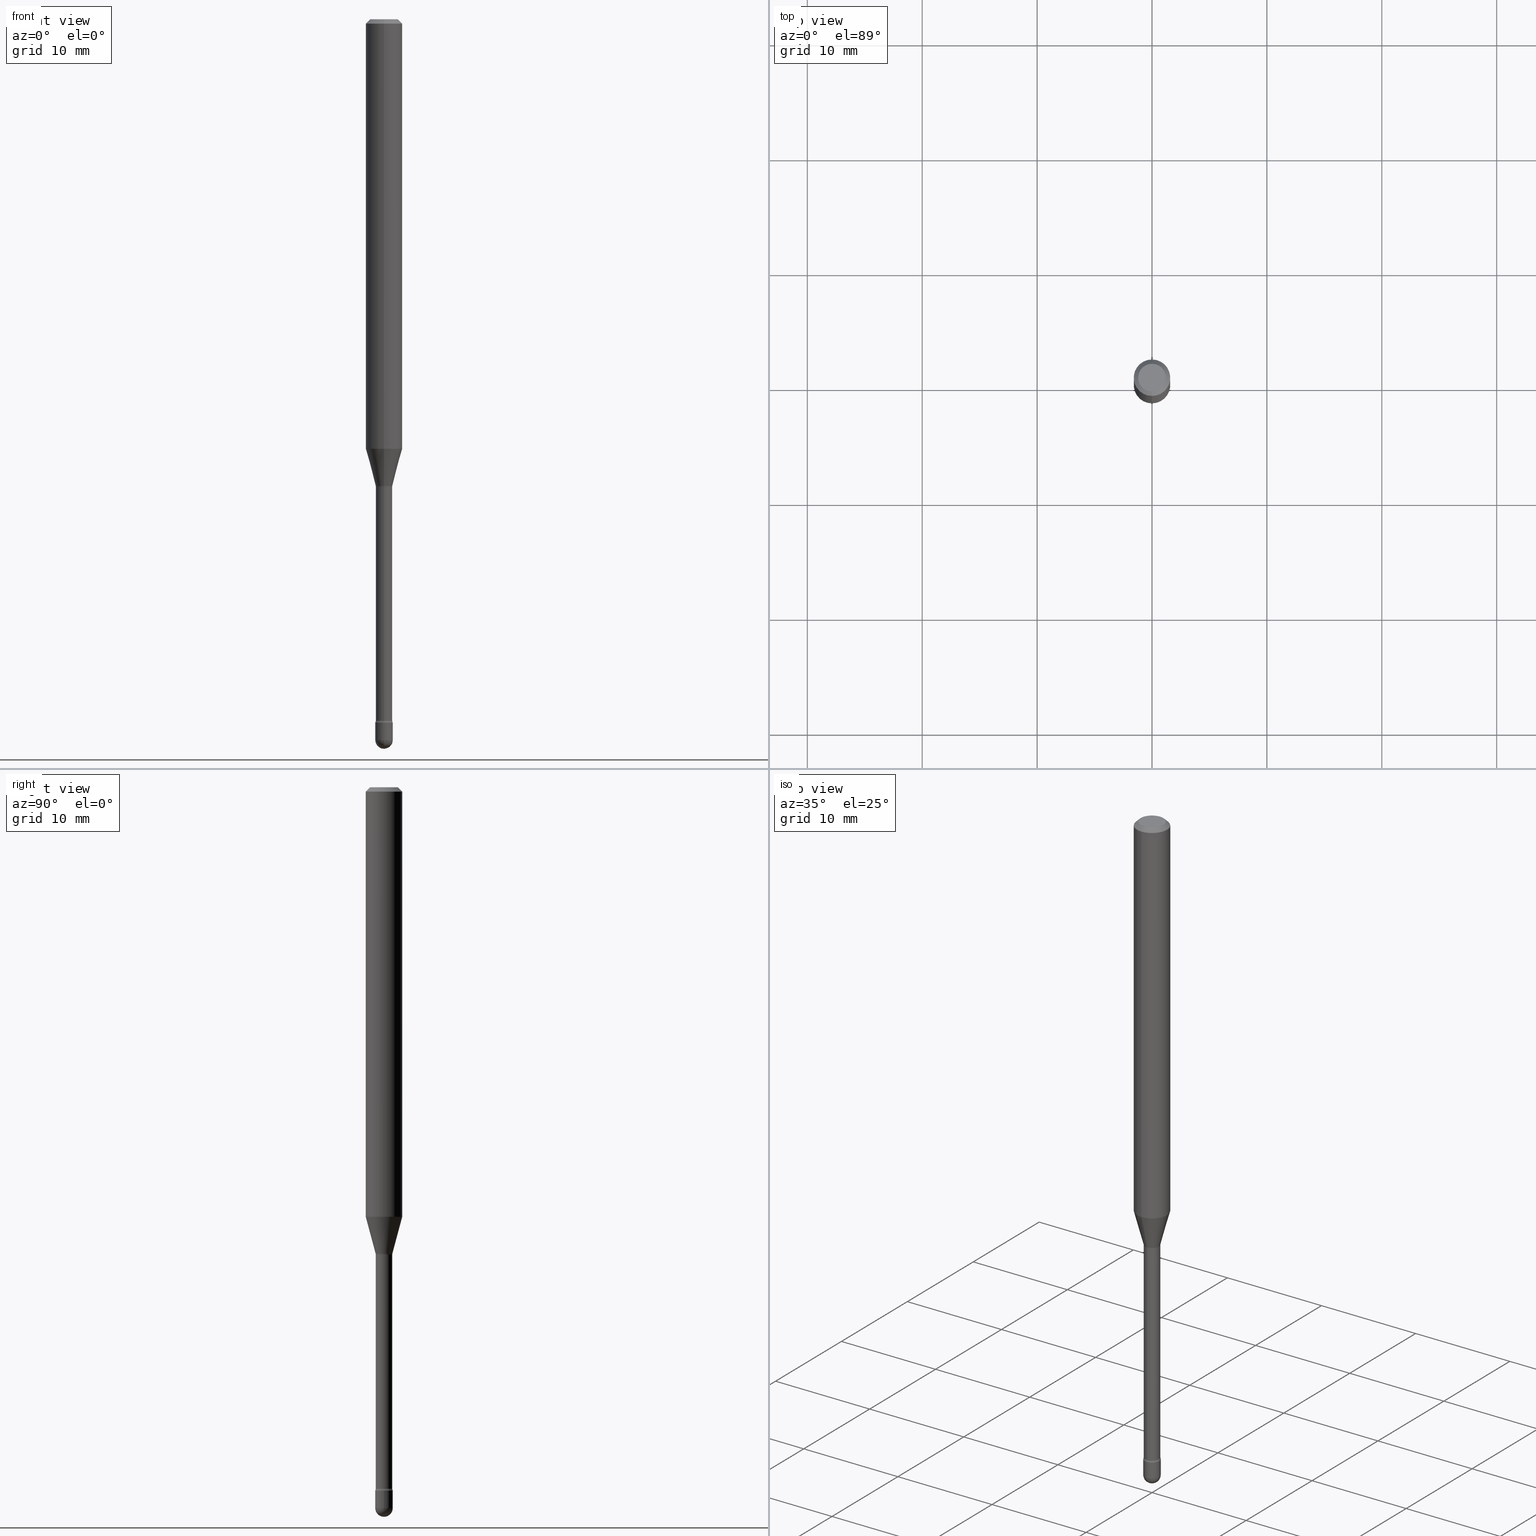
[diagram: canonical four-view strip — front | top / right | iso, engineering-drawing reading convention]
A machine part, canonical four-view strip (front | top / right | iso — engineering-drawing reading convention). The complete STEP part file that produces these views, byte-faithful:
ISO-10303-21;
HEADER;
FILE_DESCRIPTION (( 'STEP AP203' ),
    '1' );
FILE_NAME ('09491.STEP',
    '2024-04-09T23:48:32',
    ( '' ),
    ( '' ),
    'SwSTEP 2.0',
    'SolidWorks 2023',
    '' );
FILE_SCHEMA (( 'CONFIG_CONTROL_DESIGN' ));
ENDSEC;

DATA;
#1 = EDGE_CURVE ( 'NONE', #211, #287, #257, .T. ) ;
#2 = CARTESIAN_POINT ( 'NONE',  ( 6.040307951277287977E-29, -8.623958906942569995E-15, -2.470000000000000195 ) ) ;
#3 = DIRECTION ( 'NONE',  ( -6.982962677686265922E-15, -1.000000000000000000, 3.491535663592855480E-15 ) ) ;
#4 = CARTESIAN_POINT ( 'NONE',  ( 5.893488400110552381E-29, -8.414600949258782082E-15, -2.410000000000000142 ) ) ;
#5 = CIRCLE ( 'NONE', #146, 0.01500000000000001853 ) ;
#6 = AXIS2_PLACEMENT_3D ( 'NONE', #517, #473, #518 ) ;
#7 = APPROVAL_PERSON_ORGANIZATION ( #334, #125, #280 ) ;
#8 = LINE ( 'NONE', #358, #67 ) ;
#9 = EDGE_CURVE ( 'NONE', #359, #211, #560, .T. ) ;
#10 = CARTESIAN_POINT ( 'NONE',  ( 3.668146307122770334E-31, -5.237303495389312310E-17, -0.01500000000000008271 ) ) ;
#11 = DIRECTION ( 'NONE',  ( 6.982962677686265922E-15, 1.000000000000000000, 0.000000000000000000 ) ) ;
#12 = CARTESIAN_POINT ( 'NONE',  ( -3.016639876760075163E-16, -0.04320000000000558810, -1.601974787463810834 ) ) ;
#13 = CARTESIAN_POINT ( 'NONE',  ( 5.893579822906179826E-29, -8.414470026611981678E-15, -2.410000000000000142 ) ) ;
#14 = CARTESIAN_POINT ( 'NONE',  ( 6.040307951277287977E-29, -8.623958906942569995E-15, -2.470000000000000195 ) ) ;
#15 = DIRECTION ( 'NONE',  ( 6.982962677686265922E-15, 1.000000000000000000, 0.000000000000000000 ) ) ;
#16 = LINE ( 'NONE', #197, #216 ) ;
#17 = VECTOR ( 'NONE', #493, 39.37007874015748143 ) ;
#18 = AXIS2_PLACEMENT_3D ( 'NONE', #93, #351, #527 ) ;
#19 = COORDINATED_UNIVERSAL_TIME_OFFSET ( 5, 0, .BEHIND. ) ;
#20 = DIRECTION ( 'NONE',  ( -6.982962677686266711E-15, -1.000000000000000000, 0.000000000000000000 ) ) ;
#21 = ADVANCED_FACE ( 'NONE', ( #227 ), #423, .T. ) ;
#22 = PERSON_AND_ORGANIZATION ( #549, #410 ) ;
#23 = CARTESIAN_POINT ( 'NONE',  ( 0.03000000000000000583, -2.094888803305880457E-16, 1.462853032738781053E-30 ) ) ;
#24 = CARTESIAN_POINT ( 'NONE',  ( -4.364351673553916201E-16, -0.06250000000000000000, 6.962943778657995554E-16 ) ) ;
#25 = DIRECTION ( 'NONE',  ( -6.982962677686266711E-15, -1.000000000000000000, 3.491535663592855480E-15 ) ) ;
#26 = APPLICATION_PROTOCOL_DEFINITION ( 'international standard', 'config_control_design', 1994, #522 ) ;
#27 = ORIENTED_EDGE ( 'NONE', *, *, #33, .T. ) ;
#28 = DIRECTION ( 'NONE',  ( 1.000000000000000000, -6.982962677686268288E-15, 0.000000000000000000 ) ) ;
#29 = DIRECTION ( 'NONE',  ( -2.445468806185136597E-29, 3.491481338843145583E-15, 1.000000000000000000 ) ) ;
#30 = CALENDAR_DATE ( 2024, 9, 4 ) ;
#31 = AXIS2_PLACEMENT_3D ( 'NONE', #362, #272, #497 ) ;
#32 = CC_DESIGN_APPROVAL ( #125, ( #369 ) ) ;
#33 = EDGE_CURVE ( 'NONE', #73, #135, #16, .T. ) ;
#34 = CARTESIAN_POINT ( 'NONE',  ( 4.440892098500987066E-16, 0.06249999999999993755, -0.01500000000000030129 ) ) ;
#35 = DIRECTION ( 'NONE',  ( 6.982962677686265922E-15, 1.000000000000000000, 0.000000000000000000 ) ) ;
#36 = ORIENTED_EDGE ( 'NONE', *, *, #379, .F. ) ;
#37 = VERTEX_POINT ( 'NONE', #69 ) ;
#38 = ORIENTED_EDGE ( 'NONE', *, *, #306, .T. ) ;
#39 = DIRECTION ( 'NONE',  ( -2.445430871415166747E-29, 3.491535663592855480E-15, 1.000000000000000000 ) ) ;
#40 = VERTEX_POINT ( 'NONE', #313 ) ;
#41 = CIRCLE ( 'NONE', #439, 0.06250000000000000000 ) ;
#42 = ORIENTED_EDGE ( 'NONE', *, *, #349, .T. ) ;
#43 = LINE ( 'NONE', #397, #479 ) ;
#44 = CARTESIAN_POINT ( 'NONE',  ( 3.917518600492754438E-29, -5.593352102606481311E-15, -1.601974787463811278 ) ) ;
#45 = EDGE_CURVE ( 'NONE', #265, #519, #538, .T. ) ;
#46 = AXIS2_PLACEMENT_3D ( 'NONE', #177, #233, #356 ) ;
#47 = DIRECTION ( 'NONE',  ( 1.000000000000000000, -6.982962677686266711E-15, 4.876176775795935793E-29 ) ) ;
#48 = CARTESIAN_POINT ( 'NONE',  ( 3.908024739247695571E-29, -5.579796963710593659E-15, -1.598092501787273134 ) ) ;
#49 = ORIENTED_EDGE ( 'NONE', *, *, #274, .F. ) ;
#50 = DIRECTION ( 'NONE',  ( -2.445468806185136597E-29, 3.491481338843145583E-15, 1.000000000000000000 ) ) ;
#51 = DIRECTION ( 'NONE',  ( -2.445430871415166747E-29, 3.491535663592855480E-15, 1.000000000000000000 ) ) ;
#52 = DIRECTION ( 'NONE',  ( -6.982962677686266711E-15, -1.000000000000000000, 3.491535663592855480E-15 ) ) ;
#53 = MANIFOLD_SOLID_BREP ( 'Body-Move/Copy2[2]', #512 ) ;
#54 = DIRECTION ( 'NONE',  ( -6.982962677686265922E-15, -1.000000000000000000, 3.491535663592855480E-15 ) ) ;
#55 = CIRCLE ( 'NONE', #302, 0.02820000000000016938 ) ;
#56 = FACE_OUTER_BOUND ( 'NONE', #394, .T. ) ;
#57 = MANIFOLD_SOLID_BREP ( 'Body-Move/Copy2[1]', #66 ) ;
#58 = DIRECTION ( 'NONE',  ( 6.982962677686265922E-15, 1.000000000000000000, -3.483106191921935554E-15 ) ) ;
#59 = ADVANCED_FACE ( 'NONE', ( #228 ), #505, .T. ) ;
#60 = CARTESIAN_POINT ( 'NONE',  ( 6.040307951277287977E-29, -8.623958906942569995E-15, -2.470000000000000195 ) ) ;
#61 = CARTESIAN_POINT ( 'NONE',  ( 4.440892098500983121E-16, 0.06249999999999484440, -1.471990657300388250 ) ) ;
#62 = DIRECTION ( 'NONE',  ( -2.445430871415166747E-29, 3.491535663592855480E-15, 1.000000000000000000 ) ) ;
#63 = COORDINATED_UNIVERSAL_TIME_OFFSET ( 5, 0, .BEHIND. ) ;
#64 = DIRECTION ( 'NONE',  ( -2.445468806185136597E-29, 3.491481338843145583E-15, 1.000000000000000000 ) ) ;
#65 = ADVANCED_FACE ( 'NONE', ( #498 ), #462, .T. ) ;
#66 = CLOSED_SHELL ( 'NONE', ( #375, #467, #224, #65, #409 ) ) ;
#67 = VECTOR ( 'NONE', #455, 39.37007874015748143 ) ;
#68 = DATE_AND_TIME ( #370, #480 ) ;
#69 = CARTESIAN_POINT ( 'NONE',  ( -4.364351673553558748E-16, -0.06250000000000517641, -1.471990657300387584 ) ) ;
#70 = CARTESIAN_POINT ( 'NONE',  ( 0.000000000000000000, 0.000000000000000000, 0.000000000000000000 ) ) ;
#71 = ORIENTED_EDGE ( 'NONE', *, *, #83, .T. ) ;
#72 = EDGE_CURVE ( 'NONE', #509, #359, #268, .T. ) ;
#73 = VERTEX_POINT ( 'NONE', #245 ) ;
#74 = DIRECTION ( 'NONE',  ( 1.000000000000000000, -6.982962677686265922E-15, 4.883557194083112340E-29 ) ) ;
#75 = ORIENTED_EDGE ( 'NONE', *, *, #134, .T. ) ;
#76 = AXIS2_PLACEMENT_3D ( 'NONE', #48, #275, #98 ) ;
#77 = PRODUCT ( '09491', '09491', '', ( #198 ) ) ;
#78 = ORIENTED_EDGE ( 'NONE', *, *, #440, .F. ) ;
#79 = CARTESIAN_POINT ( 'NONE',  ( -1.969195475106951401E-16, -0.02820000000000855503, -2.402875394747777893 ) ) ;
#80 = EDGE_LOOP ( 'NONE', ( #386, #295, #382, #36 ) ) ;
#81 = ORIENTED_EDGE ( 'NONE', *, *, #481, .T. ) ;
#82 = ORIENTED_EDGE ( 'NONE', *, *, #400, .T. ) ;
#83 = EDGE_CURVE ( 'NONE', #37, #124, #422, .T. ) ;
#84 = VERTEX_POINT ( 'NONE', #414 ) ;
#85 = CIRCLE ( 'NONE', #367, 0.01500000000000001853 ) ;
#86 = PLANE ( 'NONE',  #294 ) ;
#87 = CIRCLE ( 'NONE', #236, 0.02999999999999997807 ) ;
#88 = ADVANCED_FACE ( 'NONE', ( #188 ), #535, .F. ) ;
#89 = DIRECTION ( 'NONE',  ( 1.000000000000000000, -6.982962677686265922E-15, 4.876176775795935793E-29 ) ) ;
#90 = ORIENTED_EDGE ( 'NONE', *, *, #481, .F. ) ;
#91 = APPROVAL_DATE_TIME ( #305, #450 ) ;
#92 = ADVANCED_FACE ( 'NONE', ( #372 ), #360, .T. ) ;
#93 = CARTESIAN_POINT ( 'NONE',  ( 6.040307951277287977E-29, -8.623958906942569995E-15, -2.470000000000000195 ) ) ;
#94 = DIRECTION ( 'NONE',  ( -2.445430871415166747E-29, 3.491535663592855480E-15, 1.000000000000000000 ) ) ;
#95 = CIRCLE ( 'NONE', #539, 0.02999999999999999889 ) ;
#96 = AXIS2_PLACEMENT_3D ( 'NONE', #529, #104, #324 ) ;
#97 = DIRECTION ( 'NONE',  ( -2.445430871415166747E-29, 3.491535663592855480E-15, 1.000000000000000000 ) ) ;
#98 = DIRECTION ( 'NONE',  ( -6.982962677686265133E-15, -1.000000000000000000, 0.000000000000000000 ) ) ;
#99 = DIRECTION ( 'NONE',  ( -6.982962677686266711E-15, -1.000000000000000000, 3.491535663592855480E-15 ) ) ;
#100 = DIRECTION ( 'NONE',  ( -6.982962677686265922E-15, -1.000000000000000000, 0.000000000000000000 ) ) ;
#101 = DIRECTION ( 'NONE',  ( -2.445430871415166747E-29, 3.491535663592855480E-15, 1.000000000000000000 ) ) ;
#102 = AXIS2_PLACEMENT_3D ( 'NONE', #10, #186, #191 ) ;
#103 = CIRCLE ( 'NONE', #207, 0.04749999999999999362 ) ;
#104 = DIRECTION ( 'NONE',  ( -2.445430871415166747E-29, 3.491535663592855480E-15, 1.000000000000000000 ) ) ;
#105 = CC_DESIGN_PERSON_AND_ORGANIZATION_ASSIGNMENT ( #458, #201, ( #77 ) ) ;
#106 = CARTESIAN_POINT ( 'NONE',  ( 3.599651395797071591E-29, -5.139507876439793578E-15, -1.471990657300388028 ) ) ;
#107 = DATE_TIME_ROLE ( 'classification_date' ) ;
#108 = CARTESIAN_POINT ( 'NONE',  ( 3.668146307122770334E-31, -5.237303495389312310E-17, -0.01500000000000008271 ) ) ;
#109 = AXIS2_PLACEMENT_3D ( 'NONE', #532, #101, #491 ) ;
#110 = AXIS2_PLACEMENT_3D ( 'NONE', #4, #456, #187 ) ;
#111 = CARTESIAN_POINT ( 'NONE',  ( 5.876156823005488124E-29, -8.389594600327224115E-15, -2.402875394747777893 ) ) ;
#112 = ORIENTED_EDGE ( 'NONE', *, *, #113, .T. ) ;
#113 = EDGE_CURVE ( 'NONE', #129, #84, #565, .T. ) ;
#114 = ORIENTED_EDGE ( 'NONE', *, *, #306, .F. ) ;
#115 = APPROVAL_DATE_TIME ( #508, #395 ) ;
#116 = ORIENTED_EDGE ( 'NONE', *, *, #33, .F. ) ;
#117 = ORIENTED_EDGE ( 'NONE', *, *, #531, .F. ) ;
#118 = CARTESIAN_POINT ( 'NONE',  ( 5.876065670480121665E-29, -8.389725135931628205E-15, -2.402875394747777893 ) ) ;
#119 = ORIENTED_EDGE ( 'NONE', *, *, #219, .T. ) ;
#120 = CIRCLE ( 'NONE', #469, 0.02819999999999999590 ) ;
#121 = ORIENTED_EDGE ( 'NONE', *, *, #400, .F. ) ;
#122 = CIRCLE ( 'NONE', #226, 0.02999999999999999889 ) ;
#123 = ORIENTED_EDGE ( 'NONE', *, *, #416, .T. ) ;
#124 = VERTEX_POINT ( 'NONE', #242 ) ;
#125 = APPROVAL ( #377, 'UNSPECIFIED' ) ;
#126 = DIRECTION ( 'NONE',  ( 4.937700262164548042E-15, 0.7071067811865451302, -0.7071067811865499042 ) ) ;
#127 = ORIENTED_EDGE ( 'NONE', *, *, #290, .T. ) ;
#128 = CARTESIAN_POINT ( 'NONE',  ( 3.668146307122770334E-31, -5.237303495389312310E-17, -0.01500000000000008271 ) ) ;
#129 = VERTEX_POINT ( 'NONE', #315 ) ;
#130 = AXIS2_PLACEMENT_3D ( 'NONE', #452, #361, #100 ) ;
#131 = AXIS2_PLACEMENT_3D ( 'NONE', #405, #403, #445 ) ;
#132 = LOCAL_TIME ( 19, 48, 32.00000000000000000, #336 ) ;
#133 = EDGE_LOOP ( 'NONE', ( #516, #266, #433, #563, #483 ) ) ;
#134 = EDGE_CURVE ( 'NONE', #359, #135, #5, .T. ) ;
#135 = VERTEX_POINT ( 'NONE', #502 ) ;
#136 = FACE_OUTER_BOUND ( 'NONE', #133, .T. ) ;
#137 = AXIS2_PLACEMENT_3D ( 'NONE', #463, #29, #520 ) ;
#138 = VERTEX_POINT ( 'NONE', #282 ) ;
#139 = AXIS2_PLACEMENT_3D ( 'NONE', #60, #140, #240 ) ;
#140 = DIRECTION ( 'NONE',  ( -1.000000000000000000, 7.105427357601001070E-15, -4.926315508542082329E-29 ) ) ;
#141 = CARTESIAN_POINT ( 'NONE',  ( 2.094888803306483442E-16, 0.02999999999999137038, -2.470000000000000195 ) ) ;
#142 = DIRECTION ( 'NONE',  ( -2.445430871415166747E-29, 3.491535663592855480E-15, 1.000000000000000000 ) ) ;
#143 = CARTESIAN_POINT ( 'NONE',  ( 0.000000000000000000, 0.000000000000000000, 0.000000000000000000 ) ) ;
#144 = DIRECTION ( 'NONE',  ( -6.982962677686265922E-15, -1.000000000000000000, 3.483106191921935554E-15 ) ) ;
#145 = DIRECTION ( 'NONE',  ( 2.445430871415166747E-29, -3.491535663592855480E-15, -1.000000000000000000 ) ) ;
#146 = AXIS2_PLACEMENT_3D ( 'NONE', #195, #541, #151 ) ;
#147 = AXIS2_PLACEMENT_3D ( 'NONE', #178, #237, #52 ) ;
#148 = SECURITY_CLASSIFICATION ( '', '', #503 ) ;
#149 = EDGE_CURVE ( 'NONE', #135, #293, #120, .T. ) ;
#150 = CARTESIAN_POINT ( 'NONE',  ( 3.599651395797071591E-29, -5.139507876439793578E-15, -1.471990657300388028 ) ) ;
#151 = DIRECTION ( 'NONE',  ( 7.105427357601001859E-15, 1.000000000000000000, 0.000000000000000000 ) ) ;
#152 = DIRECTION ( 'NONE',  ( 7.105427357601001859E-15, 1.000000000000000000, 0.000000000000000000 ) ) ;
#153 = PERSON_AND_ORGANIZATION_ROLE ( 'design_supplier' ) ;
#154 = DIRECTION ( 'NONE',  ( -2.445468806185136597E-29, 3.491481338843145583E-15, 1.000000000000000000 ) ) ;
#155 =( NAMED_UNIT ( * ) PLANE_ANGLE_UNIT ( ) SI_UNIT ( $, .RADIAN. ) );
#156 = ADVANCED_FACE ( 'NONE', ( #558 ), #443, .F. ) ;
#157 = AXIS2_PLACEMENT_3D ( 'NONE', #128, #142, #144 ) ;
#158 = LOCAL_TIME ( 19, 48, 32.00000000000000000, #63 ) ;
#159 = DATE_AND_TIME ( #430, #380 ) ;
#160 = ORIENTED_EDGE ( 'NONE', *, *, #335, .F. ) ;
#161 = APPROVAL_STATUS ( 'not_yet_approved' ) ;
#162 = EDGE_LOOP ( 'NONE', ( #330, #112 ) ) ;
#163 = FACE_OUTER_BOUND ( 'NONE', #465, .T. ) ;
#164 = ORIENTED_EDGE ( 'NONE', *, *, #113, .F. ) ;
#165 = PERSON_AND_ORGANIZATION ( #549, #410 ) ;
#166 = VERTEX_POINT ( 'NONE', #223 ) ;
#167 = VERTEX_POINT ( 'NONE', #523 ) ;
#168 = CONICAL_SURFACE ( 'NONE', #76, 0.02871111260566398468, 0.2617993877991500740 ) ;
#169 = ADVANCED_FACE ( 'NONE', ( #179 ), #402, .T. ) ;
#170 = CARTESIAN_POINT ( 'NONE',  ( 3.240469674127928209E-16, 0.02871111260565840581, -1.598092501787273134 ) ) ;
#171 = ORIENTED_EDGE ( 'NONE', *, *, #246, .T. ) ;
#172 = CC_DESIGN_DATE_AND_TIME_ASSIGNMENT ( #208, #327, ( #369 ) ) ;
#173 = AXIS2_PLACEMENT_3D ( 'NONE', #288, #417, #373 ) ;
#174 = ORIENTED_EDGE ( 'NONE', *, *, #416, .F. ) ;
#175 = CIRCLE ( 'NONE', #131, 0.02871111260566398468 ) ;
#176 = CARTESIAN_POINT ( 'NONE',  ( 3.316907271900976096E-16, 0.04749999999999999362, 3.181652960199534896E-17 ) ) ;
#177 = CARTESIAN_POINT ( 'NONE',  ( 5.876065670480121665E-29, -8.389725135931628205E-15, -2.402875394747777893 ) ) ;
#178 = CARTESIAN_POINT ( 'NONE',  ( 3.917579371037814600E-29, -5.593265075727111603E-15, -1.601974787463811278 ) ) ;
#179 = FACE_OUTER_BOUND ( 'NONE', #352, .T. ) ;
#180 = DIRECTION ( 'NONE',  ( -6.982962677686265922E-15, -1.000000000000000000, 0.000000000000000000 ) ) ;
#181 = CYLINDRICAL_SURFACE ( 'NONE', #496, 0.03000000000000000583 ) ;
#182 = CC_DESIGN_DATE_AND_TIME_ASSIGNMENT ( #68, #107, ( #148 ) ) ;
#183 = CIRCLE ( 'NONE', #18, 0.03000000000000000583 ) ;
#184 = APPROVAL_ROLE ( '' ) ;
#185 = CARTESIAN_POINT ( 'NONE',  ( -2.004886277601601689E-16, -0.02871111260566956355, -1.598092501787273134 ) ) ;
#186 = DIRECTION ( 'NONE',  ( 2.445430871415166747E-29, -3.491535663592855480E-15, -1.000000000000000000 ) ) ;
#187 = DIRECTION ( 'NONE',  ( -6.982962677686265922E-15, -1.000000000000000000, 0.000000000000000000 ) ) ;
#188 = FACE_OUTER_BOUND ( 'NONE', #553, .T. ) ;
#189 = DIRECTION ( 'NONE',  ( -1.000000000000000000, 6.982962677686265922E-15, -4.883557194083112340E-29 ) ) ;
#190 = EDGE_CURVE ( 'NONE', #73, #296, #411, .T. ) ;
#191 = DIRECTION ( 'NONE',  ( 6.982962677686265922E-15, 1.000000000000000000, -3.483106191921935554E-15 ) ) ;
#192 = APPLICATION_CONTEXT ( 'configuration controlled 3d designs of mechanical parts and assemblies' ) ;
#193 = LINE ( 'NONE', #530, #561 ) ;
#194 = AXIS2_PLACEMENT_3D ( 'NONE', #267, #94, #3 ) ;
#195 = CARTESIAN_POINT ( 'NONE',  ( 3.069544618484023945E-16, 0.04319999999999440954, -1.601974787463811500 ) ) ;
#196 = AXIS2_PLACEMENT_3D ( 'NONE', #436, #281, #47 ) ;
#197 = CARTESIAN_POINT ( 'NONE',  ( 2.003730514843488150E-16, 0.02820000000000008264, 3.796120931779272295E-16 ) ) ;
#198 = MECHANICAL_CONTEXT ( 'NONE', #192, 'mechanical' ) ;
#199 = DIRECTION ( 'NONE',  ( -6.982962677686265133E-15, -1.000000000000000000, 0.000000000000000000 ) ) ;
#200 = DIRECTION ( 'NONE',  ( -2.445468806185136877E-29, 3.491481338843145188E-15, 1.000000000000000000 ) ) ;
#201 = PERSON_AND_ORGANIZATION_ROLE ( 'design_owner' ) ;
#202 = ORIENTED_EDGE ( 'NONE', *, *, #328, .F. ) ;
#203 = ADVANCED_FACE ( 'NONE', ( #407 ), #506, .F. ) ;
#204 = DIRECTION ( 'NONE',  ( -2.445430871415166747E-29, 3.491535663592855086E-15, 1.000000000000000000 ) ) ;
#205 = EDGE_CURVE ( 'NONE', #37, #211, #41, .T. ) ;
#206 = VECTOR ( 'NONE', #204, 39.37007874015748143 ) ;
#207 = AXIS2_PLACEMENT_3D ( 'NONE', #317, #97, #99 ) ;
#208 = DATE_AND_TIME ( #30, #132 ) ;
#209 =( LENGTH_UNIT ( ) NAMED_UNIT ( * ) SI_UNIT ( $, .METRE. ) );
#210 = EDGE_LOOP ( 'NONE', ( #555, #510, #384, #114 ) ) ;
#211 = VERTEX_POINT ( 'NONE', #61 ) ;
#212 = EDGE_CURVE ( 'NONE', #509, #293, #85, .T. ) ;
#213 = ORIENTED_EDGE ( 'NONE', *, *, #205, .T. ) ;
#214 = ORIENTED_EDGE ( 'NONE', *, *, #149, .T. ) ;
#215 = CARTESIAN_POINT ( 'NONE',  ( 4.364351673553919652E-16, 0.06249999999999995143, -0.01500000000000030129 ) ) ;
#216 = VECTOR ( 'NONE', #326, 39.37007874015748143 ) ;
#217 = CIRCLE ( 'NONE', #139, 0.02999999999999997807 ) ;
#218 = ORIENTED_EDGE ( 'NONE', *, *, #246, .F. ) ;
#219 = EDGE_CURVE ( 'NONE', #478, #40, #95, .T. ) ;
#220 = ADVANCED_BREP_SHAPE_REPRESENTATION ( '09491', ( #57, #53, #355 ), #550 ) ;
#221 = APPROVAL_STATUS ( 'not_yet_approved' ) ;
#222 = CARTESIAN_POINT ( 'NONE',  ( -1.969195475107134811E-16, -0.02820000000000558865, -1.601974787463811278 ) ) ;
#223 = CARTESIAN_POINT ( 'NONE',  ( 6.114954764896610855E-29, -8.726866376909143979E-15, -2.500000000000000000 ) ) ;
#224 = ADVANCED_FACE ( 'NONE', ( #291 ), #86, .T. ) ;
#225 = DESIGN_CONTEXT ( 'detailed design', #522, 'design' ) ;
#226 = AXIS2_PLACEMENT_3D ( 'NONE', #13, #154, #329 ) ;
#227 = FACE_OUTER_BOUND ( 'NONE', #476, .T. ) ;
#228 = FACE_OUTER_BOUND ( 'NONE', #554, .T. ) ;
#229 = SPHERICAL_SURFACE ( 'NONE', #321, 0.02999999999999997807 ) ;
#230 = ORIENTED_EDGE ( 'NONE', *, *, #271, .F. ) ;
#231 = ADVANCED_FACE ( 'NONE', ( #264 ), #399, .F. ) ;
#232 = CARTESIAN_POINT ( 'NONE',  ( 6.040307951277287977E-29, -8.623958906942569995E-15, -2.470000000000000195 ) ) ;
#233 = DIRECTION ( 'NONE',  ( -2.445430871415166747E-29, 3.491535663592855480E-15, 1.000000000000000000 ) ) ;
#234 = DIRECTION ( 'NONE',  ( -1.000000000000000000, 6.982962677686265922E-15, -4.883557194083112340E-29 ) ) ;
#235 = VECTOR ( 'NONE', #200, 39.37007874015748143 ) ;
#236 = AXIS2_PLACEMENT_3D ( 'NONE', #232, #74, #35 ) ;
#237 = DIRECTION ( 'NONE',  ( -2.445430871415166747E-29, 3.491535663592855480E-15, 1.000000000000000000 ) ) ;
#238 = ORIENTED_EDGE ( 'NONE', *, *, #495, .T. ) ;
#239 = EDGE_CURVE ( 'NONE', #167, #298, #183, .T. ) ;
#240 = DIRECTION ( 'NONE',  ( -7.105427357601001070E-15, -1.000000000000000000, 0.000000000000000000 ) ) ;
#241 = CARTESIAN_POINT ( 'NONE',  ( 5.893579822906179826E-29, -8.414470026611981678E-15, -2.410000000000000142 ) ) ;
#242 = CARTESIAN_POINT ( 'NONE',  ( -4.364351673553912750E-16, -0.06250000000000005551, -0.01499999999999986587 ) ) ;
#243 = CALENDAR_DATE ( 2024, 9, 4 ) ;
#244 = TOROIDAL_SURFACE ( 'NONE', #147, 0.04320000000000000229, 0.01500000000000002373 ) ;
#245 = CARTESIAN_POINT ( 'NONE',  ( 2.067679361062483248E-16, 0.02819999999999178025, -2.402875394747777893 ) ) ;
#246 = EDGE_CURVE ( 'NONE', #73, #265, #261, .T. ) ;
#247 = DIRECTION ( 'NONE',  ( 0.000000000000000000, 0.000000000000000000, 1.000000000000000000 ) ) ;
#248 = DIRECTION ( 'NONE',  ( -1.000000000000000000, 6.982962677686265922E-15, -4.883557194083112340E-29 ) ) ;
#249 = APPROVAL_DATE_TIME ( #159, #125 ) ;
#250 = ORIENTED_EDGE ( 'NONE', *, *, #349, .F. ) ;
#251 = ORIENTED_EDGE ( 'NONE', *, *, #190, .T. ) ;
#252 = CC_DESIGN_APPROVAL ( #450, ( #148 ) ) ;
#253 = ORIENTED_EDGE ( 'NONE', *, *, #544, .F. ) ;
#254 = EDGE_LOOP ( 'NONE', ( #119, #392 ) ) ;
#255 = EDGE_CURVE ( 'NONE', #40, #478, #122, .T. ) ;
#256 = ORIENTED_EDGE ( 'NONE', *, *, #72, .F. ) ;
#257 = LINE ( 'NONE', #390, #460 ) ;
#258 = EDGE_LOOP ( 'NONE', ( #78, #253, #468, #434 ) ) ;
#259 = DIRECTION ( 'NONE',  ( 1.839019923739598738E-15, 0.2588190451025247363, 0.9659258262890673130 ) ) ;
#260 = ADVANCED_FACE ( 'NONE', ( #453 ), #419, .T. ) ;
#261 = CIRCLE ( 'NONE', #347, 0.01499999999999990750 ) ;
#262 = ORIENTED_EDGE ( 'NONE', *, *, #45, .F. ) ;
#263 = ORIENTED_EDGE ( 'NONE', *, *, #9, .F. ) ;
#264 = FACE_OUTER_BOUND ( 'NONE', #162, .T. ) ;
#265 = VERTEX_POINT ( 'NONE', #536 ) ;
#266 = ORIENTED_EDGE ( 'NONE', *, *, #239, .T. ) ;
#267 = CARTESIAN_POINT ( 'NONE',  ( 5.876156823005488124E-29, -8.389594600327224115E-15, -2.402875394747777893 ) ) ;
#268 = CIRCLE ( 'NONE', #366, 0.02871111260566398468 ) ;
#269 = CARTESIAN_POINT ( 'NONE',  ( 6.040307951277287977E-29, -8.623958906942569995E-15, -2.470000000000000195 ) ) ;
#270 = AXIS2_PLACEMENT_3D ( 'NONE', #269, #488, #540 ) ;
#271 = EDGE_CURVE ( 'NONE', #124, #287, #426, .T. ) ;
#272 = DIRECTION ( 'NONE',  ( -2.445430871415166747E-29, 3.491535663592855480E-15, 1.000000000000000000 ) ) ;
#273 = CARTESIAN_POINT ( 'NONE',  ( 3.069544618484225597E-16, 0.04319999999999168255, -2.402875394747778337 ) ) ;
#274 = EDGE_CURVE ( 'NONE', #84, #287, #429, .T. ) ;
#275 = DIRECTION ( 'NONE',  ( -2.445430871415166747E-29, 3.491535663592855480E-15, 1.000000000000000000 ) ) ;
#276 = AXIS2_PLACEMENT_3D ( 'NONE', #284, #378, #25 ) ;
#277 = DIRECTION ( 'NONE',  ( -2.445430871415166747E-29, 3.491535663592855480E-15, 1.000000000000000000 ) ) ;
#278 = CC_DESIGN_APPROVAL ( #395, ( #332 ) ) ;
#279 = DIRECTION ( 'NONE',  ( 1.000000000000000000, -7.105427357601001070E-15, 4.926316173828390833E-29 ) ) ;
#280 = APPROVAL_ROLE ( '' ) ;
#281 = DIRECTION ( 'NONE',  ( -2.445468806185136597E-29, 3.491481338843145583E-15, 1.000000000000000000 ) ) ;
#282 = CARTESIAN_POINT ( 'NONE',  ( 0.03000000000000000583, -8.728703347107864943E-15, -2.470000000000000195 ) ) ;
#283 = AXIS2_PLACEMENT_3D ( 'NONE', #461, #248, #15 ) ;
#284 = CARTESIAN_POINT ( 'NONE',  ( 3.917579371037814600E-29, -5.593265075727111603E-15, -1.601974787463811278 ) ) ;
#285 = CIRCLE ( 'NONE', #308, 0.06250000000000000000 ) ;
#286 = CC_DESIGN_PERSON_AND_ORGANIZATION_ASSIGNMENT ( #289, #459, ( #332 ) ) ;
#287 = VERTEX_POINT ( 'NONE', #34 ) ;
#288 = CARTESIAN_POINT ( 'NONE',  ( -1.169113584055446105E-44, 1.669184350826100908E-30, 4.780733988912460139E-16 ) ) ;
#289 = PERSON_AND_ORGANIZATION ( #549, #410 ) ;
#290 = EDGE_CURVE ( 'NONE', #138, #543, #353, .T. ) ;
#291 = FACE_OUTER_BOUND ( 'NONE', #254, .T. ) ;
#292 = ORIENTED_EDGE ( 'NONE', *, *, #212, .F. ) ;
#293 = VERTEX_POINT ( 'NONE', #222 ) ;
#294 = AXIS2_PLACEMENT_3D ( 'NONE', #482, #346, #89 ) ;
#295 = ORIENTED_EDGE ( 'NONE', *, *, #556, .T. ) ;
#296 = VERTEX_POINT ( 'NONE', #79 ) ;
#297 = DIRECTION ( 'NONE',  ( -2.445430871415166747E-29, 3.491535663592855086E-15, 1.000000000000000000 ) ) ;
#298 = VERTEX_POINT ( 'NONE', #438 ) ;
#299 = COORDINATED_UNIVERSAL_TIME_OFFSET ( 5, 0, .BEHIND. ) ;
#300 = EDGE_CURVE ( 'NONE', #287, #124, #331, .T. ) ;
#301 = VECTOR ( 'NONE', #259, 39.37007874015748854 ) ;
#302 = AXIS2_PLACEMENT_3D ( 'NONE', #118, #39, #388 ) ;
#303 = CC_DESIGN_SECURITY_CLASSIFICATION ( #148, ( #332 ) ) ;
#304 = DIRECTION ( 'NONE',  ( -6.982962677686265922E-15, -1.000000000000000000, 3.491535663592855086E-15 ) ) ;
#305 = DATE_AND_TIME ( #449, #310 ) ;
#306 = EDGE_CURVE ( 'NONE', #509, #37, #43, .T. ) ;
#307 = ORIENTED_EDGE ( 'NONE', *, *, #134, .F. ) ;
#308 = AXIS2_PLACEMENT_3D ( 'NONE', #150, #451, #492 ) ;
#309 = DIRECTION ( 'NONE',  ( -2.445468806185136597E-29, 3.491481338843145583E-15, 1.000000000000000000 ) ) ;
#310 = LOCAL_TIME ( 19, 48, 32.00000000000000000, #299 ) ;
#311 = CARTESIAN_POINT ( 'NONE',  ( -1.169113584055446105E-44, 1.669184350826100908E-30, 4.780733988912460139E-16 ) ) ;
#312 = DIRECTION ( 'NONE',  ( -6.982962677686265922E-15, -1.000000000000000000, 3.491535663592855086E-15 ) ) ;
#313 = CARTESIAN_POINT ( 'NONE',  ( -0.02999999999999999889, -8.306051646049246381E-15, -2.410000000000000142 ) ) ;
#314 = FACE_OUTER_BOUND ( 'NONE', #387, .T. ) ;
#315 = CARTESIAN_POINT ( 'NONE',  ( -3.773273898774340269E-16, -0.04749999999999999362, 8.310349237472643215E-17 ) ) ;
#316 = CC_DESIGN_PERSON_AND_ORGANIZATION_ASSIGNMENT ( #466, #418, ( #148 ) ) ;
#317 = CARTESIAN_POINT ( 'NONE',  ( 2.023277008888713528E-45, -2.889311751039514429E-31, -8.274445164593418344E-17 ) ) ;
#318 = CARTESIAN_POINT ( 'NONE',  ( 3.917518600492754438E-29, -5.593352102606481311E-15, -1.601974787463811278 ) ) ;
#319 = ADVANCED_FACE ( 'NONE', ( #441 ), #401, .F. ) ;
#320 = FACE_OUTER_BOUND ( 'NONE', #564, .T. ) ;
#321 = AXIS2_PLACEMENT_3D ( 'NONE', #2, #234, #11 ) ;
#322 = DIRECTION ( 'NONE',  ( -6.982962677686265922E-15, -1.000000000000000000, 4.370956789862821150E-15 ) ) ;
#323 = CARTESIAN_POINT ( 'NONE',  ( 2.094888803306469144E-16, 0.02999999999999158548, -2.410000000000000142 ) ) ;
#324 = DIRECTION ( 'NONE',  ( -6.982962677686265133E-15, -1.000000000000000000, 0.000000000000000000 ) ) ;
#325 = ORIENTED_EDGE ( 'NONE', *, *, #83, .F. ) ;
#326 = DIRECTION ( 'NONE',  ( -2.445430871415166747E-29, 3.491535663592855086E-15, 1.000000000000000000 ) ) ;
#327 = DATE_TIME_ROLE ( 'creation_date' ) ;
#328 = EDGE_CURVE ( 'NONE', #296, #519, #487, .T. ) ;
#329 = DIRECTION ( 'NONE',  ( 1.000000000000000000, -6.982962677686268288E-15, 0.000000000000000000 ) ) ;
#330 = ORIENTED_EDGE ( 'NONE', *, *, #544, .T. ) ;
#331 = CIRCLE ( 'NONE', #157, 0.06250000000000000000 ) ;
#332 = PRODUCT_DEFINITION_FORMATION_WITH_SPECIFIED_SOURCE ( 'ANY', '', #77, .NOT_KNOWN. ) ;
#333 = AXIS2_PLACEMENT_3D ( 'NONE', #499, #62, #312 ) ;
#334 = PERSON_AND_ORGANIZATION ( #549, #410 ) ;
#335 = EDGE_CURVE ( 'NONE', #138, #478, #547, .T. ) ;
#336 = COORDINATED_UNIVERSAL_TIME_OFFSET ( 5, 0, .BEHIND. ) ;
#337 = ORIENTED_EDGE ( 'NONE', *, *, #239, .F. ) ;
#338 = ORIENTED_EDGE ( 'NONE', *, *, #556, .F. ) ;
#339 = ORIENTED_EDGE ( 'NONE', *, *, #149, .F. ) ;
#340 = CIRCLE ( 'NONE', #393, 0.03000000000000000583 ) ;
#341 = CIRCLE ( 'NONE', #110, 0.02999999999999999889 ) ;
#342 = ORIENTED_EDGE ( 'NONE', *, *, #495, .F. ) ;
#343 = ORIENTED_EDGE ( 'NONE', *, *, #219, .F. ) ;
#344 = PRODUCT_RELATED_PRODUCT_CATEGORY ( 'detail', '', ( #77 ) ) ;
#345 = ORIENTED_EDGE ( 'NONE', *, *, #271, .T. ) ;
#346 = DIRECTION ( 'NONE',  ( -2.438088387897960049E-29, 3.491481338843145188E-15, 1.000000000000000000 ) ) ;
#347 = AXIS2_PLACEMENT_3D ( 'NONE', #273, #279, #152 ) ;
#348 = DIRECTION ( 'NONE',  ( 2.445430871415166747E-29, -3.491535663592855086E-15, -1.000000000000000000 ) ) ;
#349 = EDGE_CURVE ( 'NONE', #293, #135, #548, .T. ) ;
#350 = FACE_OUTER_BOUND ( 'NONE', #210, .T. ) ;
#351 = DIRECTION ( 'NONE',  ( -2.445468806185136597E-29, 3.491481338843145583E-15, 1.000000000000000000 ) ) ;
#352 = EDGE_LOOP ( 'NONE', ( #213, #432, #230, #325 ) ) ;
#353 = CIRCLE ( 'NONE', #137, 0.03000000000000000583 ) ;
#354 = CARTESIAN_POINT ( 'NONE',  ( -2.094888803305286593E-16, -0.03000000000000836373, -2.410000000000000142 ) ) ;
#355 = AXIS2_PLACEMENT_3D ( 'NONE', #70, #247, #424 ) ;
#356 = DIRECTION ( 'NONE',  ( -6.982962677686265922E-15, -1.000000000000000000, 0.000000000000000000 ) ) ;
#357 = EDGE_CURVE ( 'NONE', #296, #73, #55, .T. ) ;
#358 = CARTESIAN_POINT ( 'NONE',  ( -4.287811248607203282E-16, -0.06250000000000005551, -0.01499999999999986587 ) ) ;
#359 = VERTEX_POINT ( 'NONE', #170 ) ;
#360 = CYLINDRICAL_SURFACE ( 'NONE', #333, 0.06250000000000000000 ) ;
#361 = DIRECTION ( 'NONE',  ( -2.445430871415166747E-29, 3.491535663592855480E-15, 1.000000000000000000 ) ) ;
#362 = CARTESIAN_POINT ( 'NONE',  ( -1.169113584055446105E-44, 1.669184350826100908E-30, 4.780733988912460139E-16 ) ) ;
#363 = DIRECTION ( 'NONE',  ( -6.982962677686267499E-15, -1.000000000000000000, 0.000000000000000000 ) ) ;
#364 = DIRECTION ( 'NONE',  ( -2.445430871415166747E-29, 3.491535663592855086E-15, 1.000000000000000000 ) ) ;
#365 = LINE ( 'NONE', #525, #17 ) ;
#366 = AXIS2_PLACEMENT_3D ( 'NONE', #368, #551, #199 ) ;
#367 = AXIS2_PLACEMENT_3D ( 'NONE', #12, #189, #363 ) ;
#368 = CARTESIAN_POINT ( 'NONE',  ( 3.908024739247695571E-29, -5.579796963710593659E-15, -1.598092501787273134 ) ) ;
#369 = PRODUCT_DEFINITION ( 'UNKNOWN', '', #332, #225 ) ;
#370 = CALENDAR_DATE ( 2024, 9, 4 ) ;
#371 = DIRECTION ( 'NONE',  ( -2.445430871415166747E-29, 3.491535663592855480E-15, 1.000000000000000000 ) ) ;
#372 = FACE_OUTER_BOUND ( 'NONE', #442, .T. ) ;
#373 = DIRECTION ( 'NONE',  ( -6.982962677686265922E-15, -1.000000000000000000, 3.491535663592856663E-15 ) ) ;
#374 =( CONVERSION_BASED_UNIT ( 'INCH', #464 ) LENGTH_UNIT ( ) NAMED_UNIT ( #398 ) );
#375 = ADVANCED_FACE ( 'NONE', ( #163 ), #391, .T. ) ;
#376 = ORIENTED_EDGE ( 'NONE', *, *, #440, .T. ) ;
#377 = APPROVAL_STATUS ( 'not_yet_approved' ) ;
#378 = DIRECTION ( 'NONE',  ( -2.445430871415166747E-29, 3.491535663592855480E-15, 1.000000000000000000 ) ) ;
#379 = EDGE_CURVE ( 'NONE', #298, #138, #514, .T. ) ;
#380 = LOCAL_TIME ( 19, 48, 32.00000000000000000, #545 ) ;
#381 = PERSON_AND_ORGANIZATION ( #549, #410 ) ;
#382 = ORIENTED_EDGE ( 'NONE', *, *, #290, .F. ) ;
#383 = DIRECTION ( 'NONE',  ( -6.982962677686265922E-15, -1.000000000000000000, 0.000000000000000000 ) ) ;
#384 = ORIENTED_EDGE ( 'NONE', *, *, #205, .F. ) ;
#385 = UNCERTAINTY_MEASURE_WITH_UNIT (LENGTH_MEASURE( 1.000000000000000082E-05 ), #374, 'distance_accuracy_value', 'NONE');
#386 = ORIENTED_EDGE ( 'NONE', *, *, #526, .F. ) ;
#387 = EDGE_LOOP ( 'NONE', ( #389, #27, #250, #117 ) ) ;
#388 = DIRECTION ( 'NONE',  ( -6.982962677686265922E-15, -1.000000000000000000, 0.000000000000000000 ) ) ;
#389 = ORIENTED_EDGE ( 'NONE', *, *, #357, .T. ) ;
#390 = CARTESIAN_POINT ( 'NONE',  ( 4.440892098500625669E-16, 0.06250000000000000000, 2.598524199166925711E-16 ) ) ;
#391 = CYLINDRICAL_SURFACE ( 'NONE', #196, 0.03000000000000000583 ) ;
#392 = ORIENTED_EDGE ( 'NONE', *, *, #255, .T. ) ;
#393 = AXIS2_PLACEMENT_3D ( 'NONE', #14, #50, #413 ) ;
#394 = EDGE_LOOP ( 'NONE', ( #121, #75, #214, #292 ) ) ;
#395 = APPROVAL ( #161, 'UNSPECIFIED' ) ;
#396 = ORIENTED_EDGE ( 'NONE', *, *, #328, .T. ) ;
#397 = CARTESIAN_POINT ( 'NONE',  ( -2.004886277601601689E-16, -0.02871111260566956355, -1.598092501787273134 ) ) ;
#398 = DIMENSIONAL_EXPONENTS ( 1.000000000000000000, 0.000000000000000000, 0.000000000000000000, 0.000000000000000000, 0.000000000000000000, 0.000000000000000000, 0.000000000000000000 ) ;
#399 = PLANE ( 'NONE',  #471 ) ;
#400 = EDGE_CURVE ( 'NONE', #359, #509, #175, .T. ) ;
#401 = TOROIDAL_SURFACE ( 'NONE', #276, 0.04320000000000000229, 0.01500000000000002373 ) ;
#402 = CYLINDRICAL_SURFACE ( 'NONE', #486, 0.06250000000000000000 ) ;
#403 = DIRECTION ( 'NONE',  ( -2.445430871415166747E-29, 3.491535663592855480E-15, 1.000000000000000000 ) ) ;
#404 = DIRECTION ( 'NONE',  ( 6.982962677686265922E-15, 1.000000000000000000, -3.491535663592855086E-15 ) ) ;
#405 = CARTESIAN_POINT ( 'NONE',  ( 3.908024739247695571E-29, -5.579796963710593659E-15, -1.598092501787273134 ) ) ;
#406 = ADVANCED_FACE ( 'NONE', ( #314 ), #415, .T. ) ;
#407 = FACE_OUTER_BOUND ( 'NONE', #484, .T. ) ;
#408 = CARTESIAN_POINT ( 'NONE',  ( 0.02999999999999999889, -8.623958906942569995E-15, -2.410000000000000142 ) ) ;
#409 = ADVANCED_FACE ( 'NONE', ( #136 ), #181, .T. ) ;
#410 = ORGANIZATION ( 'UNSPECIFIED', 'UNSPECIFIED', '' ) ;
#411 = CIRCLE ( 'NONE', #46, 0.02820000000000016938 ) ;
#412 = DIRECTION ( 'NONE',  ( -6.982962677686265922E-15, -1.000000000000000000, 3.491535663592855086E-15 ) ) ;
#413 = DIRECTION ( 'NONE',  ( 1.000000000000000000, -6.982962677686299054E-15, 0.000000000000000000 ) ) ;
#414 = CARTESIAN_POINT ( 'NONE',  ( 3.840629472727447874E-16, 0.04749999999999999362, -2.485923956665947867E-16 ) ) ;
#415 = CYLINDRICAL_SURFACE ( 'NONE', #31, 0.02820000000000008264 ) ;
#416 = EDGE_CURVE ( 'NONE', #211, #37, #285, .T. ) ;
#417 = DIRECTION ( 'NONE',  ( -2.445430871415166747E-29, 3.491535663592855480E-15, 1.000000000000000000 ) ) ;
#418 = PERSON_AND_ORGANIZATION_ROLE ( 'classification_officer' ) ;
#419 = CONICAL_SURFACE ( 'NONE', #102, 0.06250000000000000000, 0.7853981633974483900 ) ;
#420 = APPROVAL_PERSON_ORGANIZATION ( #22, #450, #184 ) ;
#421 =( NAMED_UNIT ( * ) SI_UNIT ( $, .STERADIAN. ) SOLID_ANGLE_UNIT ( ) );
#422 = LINE ( 'NONE', #24, #206 ) ;
#423 = CYLINDRICAL_SURFACE ( 'NONE', #173, 0.02820000000000008264 ) ;
#424 = DIRECTION ( 'NONE',  ( 1.000000000000000000, 0.000000000000000000, 0.000000000000000000 ) ) ;
#425 = ORIENTED_EDGE ( 'NONE', *, *, #526, .T. ) ;
#426 = CIRCLE ( 'NONE', #6, 0.06250000000000000000 ) ;
#427 = APPROVAL_PERSON_ORGANIZATION ( #381, #395, #542 ) ;
#428 = PRODUCT_DEFINITION_SHAPE ( 'NONE', 'NONE',  #369 ) ;
#429 = LINE ( 'NONE', #215, #521 ) ;
#430 = CALENDAR_DATE ( 2024, 9, 4 ) ;
#431 = EDGE_LOOP ( 'NONE', ( #338, #425, #337, #342 ) ) ;
#432 = ORIENTED_EDGE ( 'NONE', *, *, #1, .T. ) ;
#433 = ORIENTED_EDGE ( 'NONE', *, *, #379, .T. ) ;
#434 = ORIENTED_EDGE ( 'NONE', *, *, #300, .T. ) ;
#435 = ORIENTED_EDGE ( 'NONE', *, *, #357, .F. ) ;
#436 = CARTESIAN_POINT ( 'NONE',  ( 0.000000000000000000, 0.000000000000000000, 0.000000000000000000 ) ) ;
#437 = EDGE_CURVE ( 'NONE', #167, #40, #365, .T. ) ;
#438 = CARTESIAN_POINT ( 'NONE',  ( -2.131628207279695521E-16, -0.03000000000000861353, -2.470000000000000195 ) ) ;
#439 = AXIS2_PLACEMENT_3D ( 'NONE', #106, #277, #322 ) ;
#440 = EDGE_CURVE ( 'NONE', #129, #124, #8, .T. ) ;
#441 = FACE_OUTER_BOUND ( 'NONE', #474, .T. ) ;
#442 = EDGE_LOOP ( 'NONE', ( #470, #123, #71, #546 ) ) ;
#443 = TOROIDAL_SURFACE ( 'NONE', #194, 0.04320000000000007861, 0.01499999999999990750 ) ;
#444 = AXIS2_PLACEMENT_3D ( 'NONE', #552, #501, #20 ) ;
#445 = DIRECTION ( 'NONE',  ( -6.982962677686265133E-15, -1.000000000000000000, 0.000000000000000000 ) ) ;
#446 = ORIENTED_EDGE ( 'NONE', *, *, #437, .T. ) ;
#447 = DIRECTION ( 'NONE',  ( -2.445430871415166747E-29, 3.491535663592855480E-15, 1.000000000000000000 ) ) ;
#448 = FACE_OUTER_BOUND ( 'NONE', #431, .T. ) ;
#449 = CALENDAR_DATE ( 2024, 9, 4 ) ;
#450 = APPROVAL ( #221, 'UNSPECIFIED' ) ;
#451 = DIRECTION ( 'NONE',  ( -2.445430871415166747E-29, 3.491535663592855480E-15, 1.000000000000000000 ) ) ;
#452 = CARTESIAN_POINT ( 'NONE',  ( 5.893488400110552381E-29, -8.414600949258782082E-15, -2.410000000000000142 ) ) ;
#453 = FACE_OUTER_BOUND ( 'NONE', #258, .T. ) ;
#454 = AXIS2_PLACEMENT_3D ( 'NONE', #108, #145, #58 ) ;
#455 = DIRECTION ( 'NONE',  ( -4.851104656540964275E-15, -0.7071067811865500152, -0.7071067811865450192 ) ) ;
#456 = DIRECTION ( 'NONE',  ( -2.445430871415166747E-29, 3.491535663592855480E-15, 1.000000000000000000 ) ) ;
#457 = ADVANCED_FACE ( 'NONE', ( #320 ), #168, .T. ) ;
#458 = PERSON_AND_ORGANIZATION ( #549, #410 ) ;
#459 = PERSON_AND_ORGANIZATION_ROLE ( 'creator' ) ;
#460 = VECTOR ( 'NONE', #297, 39.37007874015748143 ) ;
#461 = CARTESIAN_POINT ( 'NONE',  ( 6.040307951277287977E-29, -8.623958906942569995E-15, -2.470000000000000195 ) ) ;
#462 = SPHERICAL_SURFACE ( 'NONE', #283, 0.02999999999999997807 ) ;
#463 = CARTESIAN_POINT ( 'NONE',  ( 6.040307951277287977E-29, -8.623958906942569995E-15, -2.470000000000000195 ) ) ;
#464 = LENGTH_MEASURE_WITH_UNIT ( LENGTH_MEASURE( 0.02539999999999999897 ), #209 );
#465 = EDGE_LOOP ( 'NONE', ( #238, #446, #343, #160, #127 ) ) ;
#466 = PERSON_AND_ORGANIZATION ( #549, #410 ) ;
#467 = ADVANCED_FACE ( 'NONE', ( #448 ), #229, .T. ) ;
#468 = ORIENTED_EDGE ( 'NONE', *, *, #274, .T. ) ;
#469 = AXIS2_PLACEMENT_3D ( 'NONE', #44, #447, #180 ) ;
#470 = ORIENTED_EDGE ( 'NONE', *, *, #1, .F. ) ;
#471 = AXIS2_PLACEMENT_3D ( 'NONE', #176, #348, #404 ) ;
#472 = ORIENTED_EDGE ( 'NONE', *, *, #531, .T. ) ;
#473 = DIRECTION ( 'NONE',  ( -2.445430871415166747E-29, 3.491535663592855480E-15, 1.000000000000000000 ) ) ;
#474 = EDGE_LOOP ( 'NONE', ( #307, #256, #562, #42 ) ) ;
#475 = ADVANCED_FACE ( 'NONE', ( #56 ), #244, .F. ) ;
#476 = EDGE_LOOP ( 'NONE', ( #116, #251, #472, #339 ) ) ;
#477 = CARTESIAN_POINT ( 'NONE',  ( 2.040047249754869106E-16, 0.02871111260565840581, -1.598092501787273134 ) ) ;
#478 = VERTEX_POINT ( 'NONE', #408 ) ;
#479 = VECTOR ( 'NONE', #524, 39.37007874015748854 ) ;
#480 = LOCAL_TIME ( 19, 48, 32.00000000000000000, #19 ) ;
#481 = EDGE_CURVE ( 'NONE', #519, #265, #341, .T. ) ;
#482 = CARTESIAN_POINT ( 'NONE',  ( 5.893579822906179826E-29, -8.414470026611981678E-15, -2.410000000000000142 ) ) ;
#483 = ORIENTED_EDGE ( 'NONE', *, *, #255, .F. ) ;
#484 = EDGE_LOOP ( 'NONE', ( #218, #435, #396, #81 ) ) ;
#485 = SHAPE_DEFINITION_REPRESENTATION ( #428, #220 ) ;
#486 = AXIS2_PLACEMENT_3D ( 'NONE', #311, #51, #304 ) ;
#487 = CIRCLE ( 'NONE', #444, 0.01499999999999990750 ) ;
#488 = DIRECTION ( 'NONE',  ( -2.445468806185136597E-29, 3.491481338843145583E-15, 1.000000000000000000 ) ) ;
#489 = DIRECTION ( 'NONE',  ( -2.445430871415166747E-29, 3.491535663592855480E-15, 1.000000000000000000 ) ) ;
#490 = CC_DESIGN_PERSON_AND_ORGANIZATION_ASSIGNMENT ( #557, #507, ( #369 ) ) ;
#491 = DIRECTION ( 'NONE',  ( -6.982962677686266711E-15, -1.000000000000000000, 3.491535663592855480E-15 ) ) ;
#492 = DIRECTION ( 'NONE',  ( -6.982962677686265922E-15, -1.000000000000000000, 4.370956789862821150E-15 ) ) ;
#493 = DIRECTION ( 'NONE',  ( -2.445468806185136877E-29, 3.491481338843145188E-15, 1.000000000000000000 ) ) ;
#494 = AXIS2_PLACEMENT_3D ( 'NONE', #323, #364, #412 ) ;
#495 = EDGE_CURVE ( 'NONE', #543, #167, #340, .T. ) ;
#496 = AXIS2_PLACEMENT_3D ( 'NONE', #143, #309, #534 ) ;
#497 = DIRECTION ( 'NONE',  ( -6.982962677686265922E-15, -1.000000000000000000, 3.491535663592856663E-15 ) ) ;
#498 = FACE_OUTER_BOUND ( 'NONE', #80, .T. ) ;
#499 = CARTESIAN_POINT ( 'NONE',  ( -1.169113584055446105E-44, 1.669184350826100908E-30, 4.780733988912460139E-16 ) ) ;
#500 = DIRECTION ( 'NONE',  ( -2.445430871415166747E-29, 3.491535663592855086E-15, 1.000000000000000000 ) ) ;
#501 = DIRECTION ( 'NONE',  ( -1.000000000000000000, 6.982962677686265922E-15, -4.883557194083112340E-29 ) ) ;
#502 = CARTESIAN_POINT ( 'NONE',  ( 2.003730514844074372E-16, 0.02819999999999440662, -1.601974787463811278 ) ) ;
#503 = SECURITY_CLASSIFICATION_LEVEL ( 'unclassified' ) ;
#504 = APPLICATION_PROTOCOL_DEFINITION ( 'international standard', 'config_control_design', 1994, #192 ) ;
#505 = CONICAL_SURFACE ( 'NONE', #454, 0.06250000000000000000, 0.7853981633974483900 ) ;
#506 = TOROIDAL_SURFACE ( 'NONE', #559, 0.04320000000000007861, 0.01499999999999990750 ) ;
#507 = PERSON_AND_ORGANIZATION_ROLE ( 'creator' ) ;
#508 = DATE_AND_TIME ( #243, #158 ) ;
#509 = VERTEX_POINT ( 'NONE', #185 ) ;
#510 = ORIENTED_EDGE ( 'NONE', *, *, #9, .T. ) ;
#511 = ADVANCED_FACE ( 'NONE', ( #350 ), #528, .T. ) ;
#512 = CLOSED_SHELL ( 'NONE', ( #475, #406, #156, #59, #169, #511, #457, #92, #260, #231, #88, #203, #21, #319 ) ) ;
#513 = ORIENTED_EDGE ( 'NONE', *, *, #190, .F. ) ;
#514 = CIRCLE ( 'NONE', #270, 0.03000000000000000583 ) ;
#515 = EDGE_LOOP ( 'NONE', ( #513, #171, #537, #202 ) ) ;
#516 = ORIENTED_EDGE ( 'NONE', *, *, #437, .F. ) ;
#517 = CARTESIAN_POINT ( 'NONE',  ( 3.668146307122770334E-31, -5.237303495389312310E-17, -0.01500000000000008271 ) ) ;
#518 = DIRECTION ( 'NONE',  ( -6.982962677686265922E-15, -1.000000000000000000, 3.483106191921935554E-15 ) ) ;
#519 = VERTEX_POINT ( 'NONE', #354 ) ;
#520 = DIRECTION ( 'NONE',  ( 1.000000000000000000, -6.982962677686299054E-15, 0.000000000000000000 ) ) ;
#521 = VECTOR ( 'NONE', #126, 39.37007874015748143 ) ;
#522 = APPLICATION_CONTEXT ( 'configuration controlled 3d designs of mechanical parts and assemblies' ) ;
#523 = CARTESIAN_POINT ( 'NONE',  ( -0.03000000000000000583, -8.306051646049246381E-15, -2.470000000000000195 ) ) ;
#524 = DIRECTION ( 'NONE',  ( -1.807323732225328562E-15, -0.2588190451025179639, 0.9659258262890690894 ) ) ;
#525 = CARTESIAN_POINT ( 'NONE',  ( -0.03000000000000000583, 2.131628207280300972E-16, -1.475680527076471882E-30 ) ) ;
#526 = EDGE_CURVE ( 'NONE', #166, #298, #217, .T. ) ;
#527 = DIRECTION ( 'NONE',  ( 1.000000000000000000, -6.982962677686299054E-15, 0.000000000000000000 ) ) ;
#528 = CONICAL_SURFACE ( 'NONE', #96, 0.02871111260566398468, 0.2617993877991500740 ) ;
#529 = CARTESIAN_POINT ( 'NONE',  ( 3.908024739247695571E-29, -5.579796963710593659E-15, -1.598092501787273134 ) ) ;
#530 = CARTESIAN_POINT ( 'NONE',  ( -1.969195475107532693E-16, -0.02820000000000008264, 5.765347046045648970E-16 ) ) ;
#531 = EDGE_CURVE ( 'NONE', #296, #293, #193, .T. ) ;
#532 = CARTESIAN_POINT ( 'NONE',  ( 2.023277008888713528E-45, -2.889311751039514429E-31, -8.274445164593418344E-17 ) ) ;
#533 = CC_DESIGN_PERSON_AND_ORGANIZATION_ASSIGNMENT ( #165, #153, ( #332 ) ) ;
#534 = DIRECTION ( 'NONE',  ( 1.000000000000000000, -6.982962677686266711E-15, 4.876176775795935793E-29 ) ) ;
#535 = PLANE ( 'NONE',  #494 ) ;
#536 = CARTESIAN_POINT ( 'NONE',  ( 2.131628207280886208E-16, 0.02999999999999152997, -2.410000000000000142 ) ) ;
#537 = ORIENTED_EDGE ( 'NONE', *, *, #45, .T. ) ;
#538 = CIRCLE ( 'NONE', #130, 0.02999999999999999889 ) ;
#539 = AXIS2_PLACEMENT_3D ( 'NONE', #241, #64, #28 ) ;
#540 = DIRECTION ( 'NONE',  ( 1.000000000000000000, -6.982962677686299054E-15, 0.000000000000000000 ) ) ;
#541 = DIRECTION ( 'NONE',  ( 1.000000000000000000, -7.105427357601001070E-15, 4.926316173828390833E-29 ) ) ;
#542 = APPROVAL_ROLE ( '' ) ;
#543 = VERTEX_POINT ( 'NONE', #141 ) ;
#544 = EDGE_CURVE ( 'NONE', #84, #129, #103, .T. ) ;
#545 = COORDINATED_UNIVERSAL_TIME_OFFSET ( 5, 0, .BEHIND. ) ;
#546 = ORIENTED_EDGE ( 'NONE', *, *, #300, .F. ) ;
#547 = LINE ( 'NONE', #23, #235 ) ;
#548 = CIRCLE ( 'NONE', #566, 0.02819999999999999590 ) ;
#549 = PERSON ( 'UNSPECIFIED', 'UNSPECIFIED', 'UNSPECIFIED', ('UNSPECIFIED'), ('UNSPECIFIED'), ('UNSPECIFIED') ) ;
#550 =( GEOMETRIC_REPRESENTATION_CONTEXT ( 3 ) GLOBAL_UNCERTAINTY_ASSIGNED_CONTEXT ( ( #385 ) ) GLOBAL_UNIT_ASSIGNED_CONTEXT ( ( #374, #155, #421 ) ) REPRESENTATION_CONTEXT ( 'NONE', 'WORKASPACE' ) );
#551 = DIRECTION ( 'NONE',  ( -2.445430871415166747E-29, 3.491535663592855480E-15, 1.000000000000000000 ) ) ;
#552 = CARTESIAN_POINT ( 'NONE',  ( -3.016639876759884357E-16, -0.04320000000000846774, -2.402875394747777893 ) ) ;
#553 = EDGE_LOOP ( 'NONE', ( #90, #262 ) ) ;
#554 = EDGE_LOOP ( 'NONE', ( #164, #376, #345, #49 ) ) ;
#555 = ORIENTED_EDGE ( 'NONE', *, *, #72, .T. ) ;
#556 = EDGE_CURVE ( 'NONE', #166, #543, #87, .T. ) ;
#557 = PERSON_AND_ORGANIZATION ( #549, #410 ) ;
#558 = FACE_OUTER_BOUND ( 'NONE', #515, .T. ) ;
#559 = AXIS2_PLACEMENT_3D ( 'NONE', #111, #371, #54 ) ;
#560 = LINE ( 'NONE', #477, #301 ) ;
#561 = VECTOR ( 'NONE', #500, 39.37007874015748143 ) ;
#562 = ORIENTED_EDGE ( 'NONE', *, *, #212, .T. ) ;
#563 = ORIENTED_EDGE ( 'NONE', *, *, #335, .T. ) ;
#564 = EDGE_LOOP ( 'NONE', ( #263, #82, #38, #174 ) ) ;
#565 = CIRCLE ( 'NONE', #109, 0.04749999999999999362 ) ;
#566 = AXIS2_PLACEMENT_3D ( 'NONE', #318, #489, #383 ) ;
ENDSEC;
END-ISO-10303-21;
